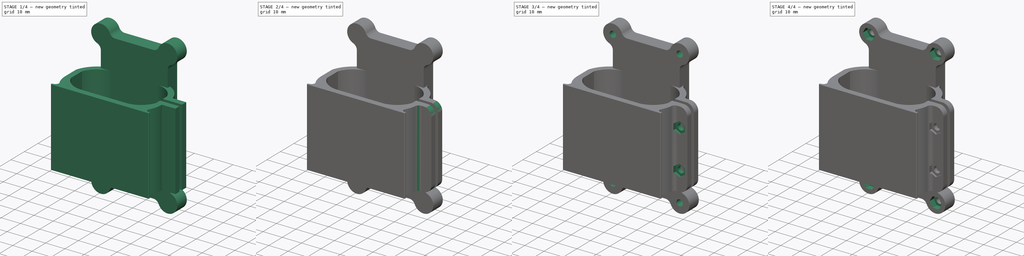
[diagram: build sequence overview — one tinted view per stage of 4, left to right]
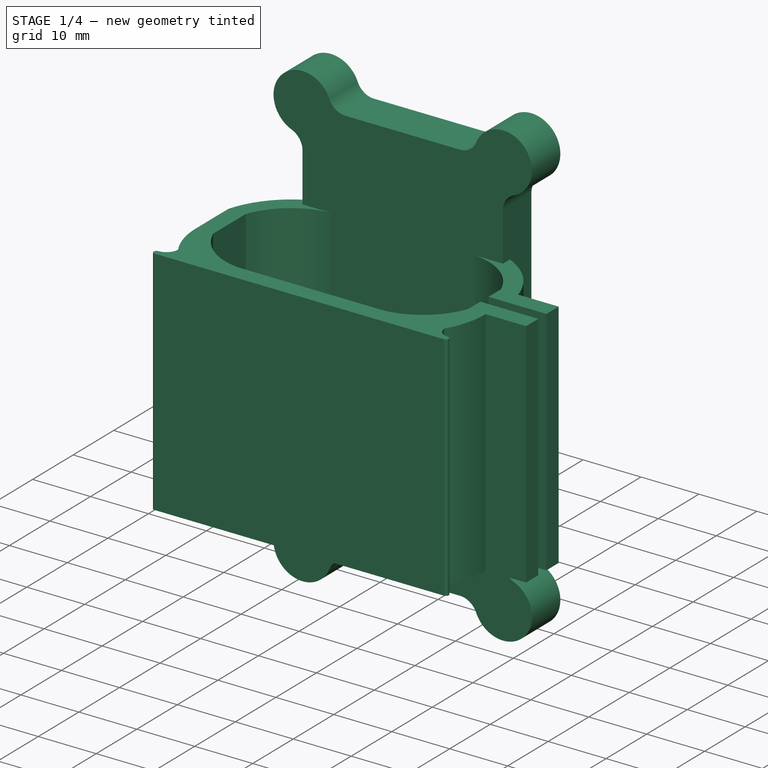
[diagram: stage 1 of 4 — iso view after this stage's code; geometry added in this stage tinted green]
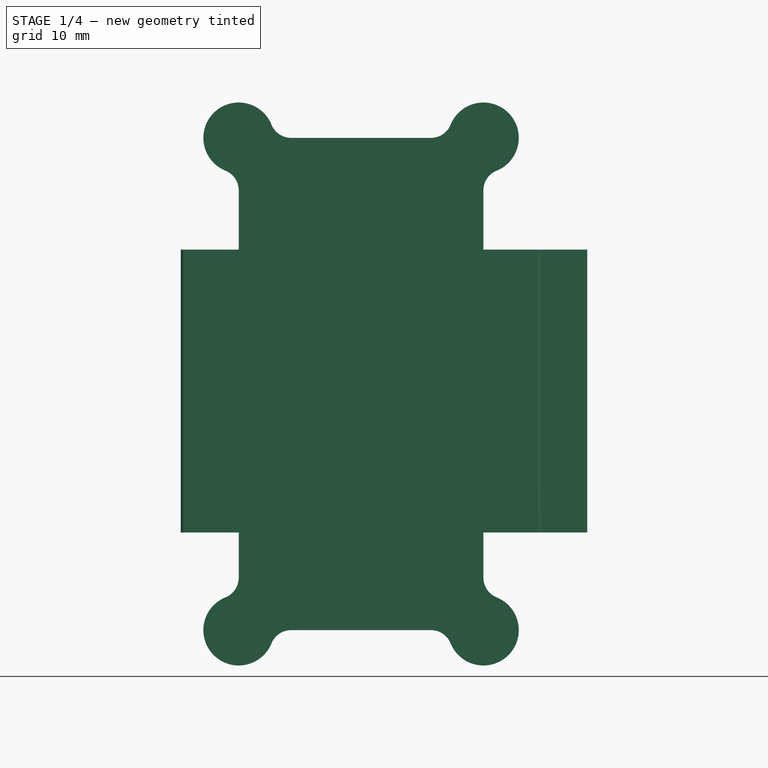
[diagram: stage 1 of 4 — front view after this stage's code; geometry added in this stage tinted green]
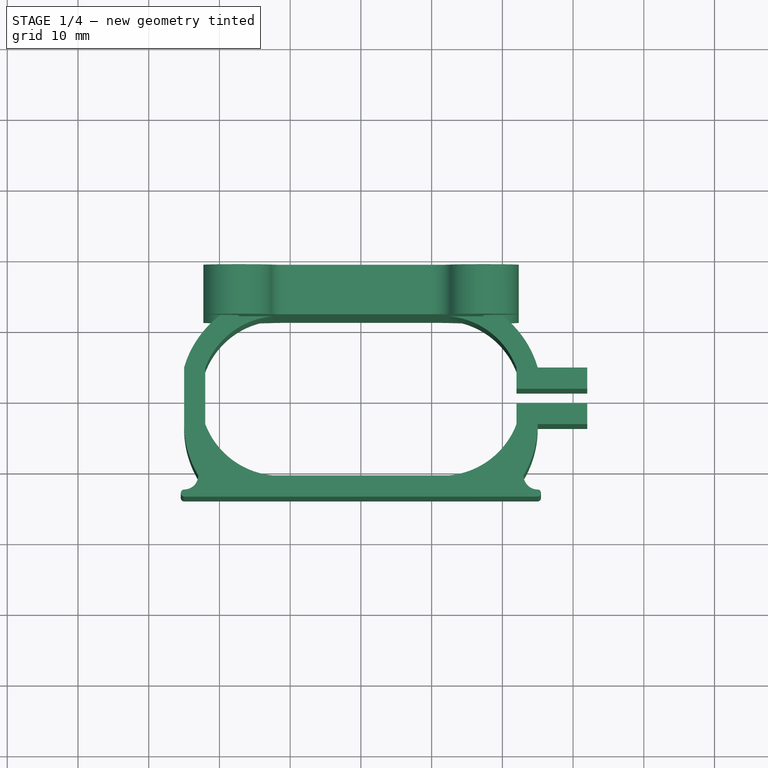
[diagram: stage 1 of 4 — top view after this stage's code; geometry added in this stage tinted green]
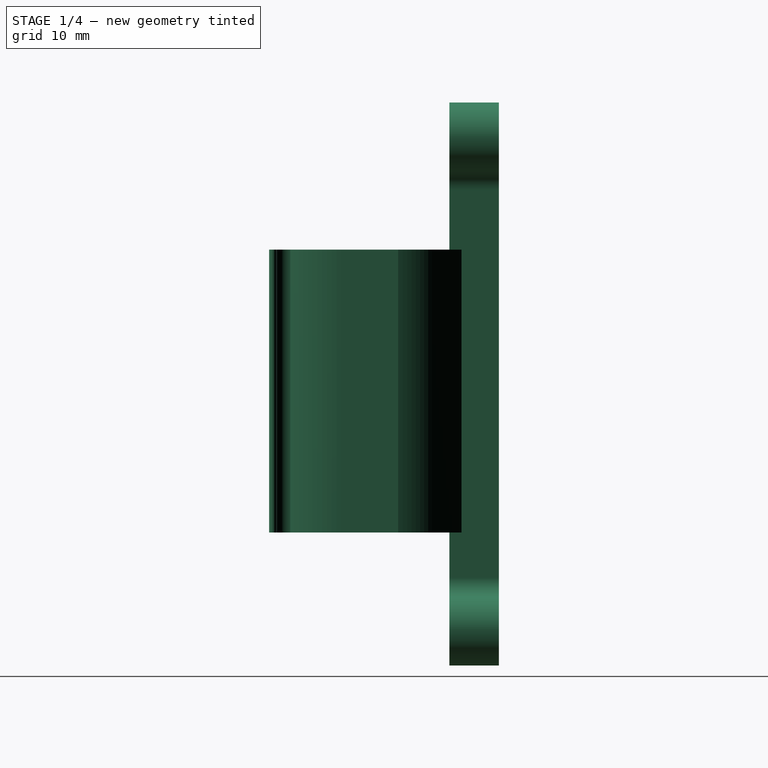
[diagram: stage 1 of 4 — right view after this stage's code; geometry added in this stage tinted green]
FCSTD DOCUMENT  (FreeCAD 0.18R14016 (Git))
Label: anker-astro-support
License: CreativeCommons Attribution-NonCommercial-ShareAlike
LicenseURL: http://creativecommons.org/licenses/by-nc-sa/4.0/
objects: Sketcher::SketchObject×7, PartDesign::Fillet×3, PartDesign::Pocket×3, PartDesign::Pad×2, PartDesign::Hole×2, PartDesign::Body×1
note: 25 computed .brp shape members not serialized (recipe doc carries the construction recipe); baked Part::Feature solids carry a one-line shape summary decoded from their .brp

FEATURE [Sketcher::SketchObject] Sketch001
  MapMode = 5
  Placement = pos=(0,0,-5) rot=(1,0,0;3.14159rad)
  sketch-geometry (53):
    g0: LineSegment [constr] StartX=22 StartY=-11.25 StartZ=0 EndX=-22 EndY=-11.25 EndZ=0
    g1: LineSegment [constr] StartX=-22 StartY=-11.25 StartZ=0 EndX=-22 EndY=11.25 EndZ=0
    g2: LineSegment [constr] StartX=-22 StartY=11.25 StartZ=0 EndX=22 EndY=11.25 EndZ=0
    g3: LineSegment [constr] StartX=22 StartY=11.25 StartZ=0 EndX=22 EndY=-11.25 EndZ=0
    g4: LineSegment [constr] StartX=28.0315 StartY=-4 StartZ=0 EndX=-32.5281 EndY=-4 EndZ=0
    g5: LineSegment [constr] StartX=-31.9917 StartY=4 StartZ=0 EndX=33.9247 EndY=4 EndZ=0
    g6: LineSegment [constr] StartX=12.5 StartY=-17.9811 StartZ=0 EndX=12.5 EndY=19.0141 EndZ=0
    g7: LineSegment [constr] StartX=-12.5 StartY=-17.584 StartZ=0 EndX=-12.5 EndY=18.8949 EndZ=0
    g8: LineSegment [constr] StartX=-25 StartY=14.25 StartZ=0 EndX=25 EndY=14.25 EndZ=0
    g9: LineSegment [constr] StartX=25 StartY=14.25 StartZ=0 EndX=25 EndY=-14.25 EndZ=0
    g10: LineSegment [constr] StartX=25 StartY=-14.25 StartZ=0 EndX=-25 EndY=-14.25 EndZ=0
    g11: LineSegment [constr] StartX=-25 StartY=-14.25 StartZ=0 EndX=-25 EndY=14.25 EndZ=0
    g12: ArcOfCircle CenterX=11.4309 CenterY=0 CenterZ=0 NormalX=0 NormalY=0 NormalZ=1 AngleXU=0 Radius=11.3007 StartAngle=4.80713 EndAngle=5.92138
    g13: ArcOfCircle CenterX=11.4309 CenterY=0 CenterZ=0 NormalX=0 NormalY=0 NormalZ=1 AngleXU=0 Radius=11.3007 StartAngle=0.361803 EndAngle=1.47605
    g14: ArcOfCircle CenterX=-11.4309 CenterY=0 CenterZ=0 NormalX=0 NormalY=0 NormalZ=1 AngleXU=0 Radius=11.3007 StartAngle=1.66554 EndAngle=2.77979
    g15: ArcOfCircle CenterX=-11.4309 CenterY=0 CenterZ=0 NormalX=0 NormalY=0 NormalZ=1 AngleXU=0 Radius=11.3007 StartAngle=3.5034 EndAngle=4.61764
    g16: ArcOfCircle CenterX=11.2675 CenterY=0 CenterZ=0 NormalX=0 NormalY=0 NormalZ=1 AngleXU=0 Radius=14.3032 StartAngle=4.79867 EndAngle=5.99975
    g17: ArcOfCircle CenterX=-11.2675 CenterY=0 CenterZ=0 NormalX=0 NormalY=0 NormalZ=1 AngleXU=0 Radius=14.3032 StartAngle=3.42503 EndAngle=4.62611
    g18: LineSegment StartX=-12.5 StartY=11.25 StartZ=0 EndX=12.5 EndY=11.25 EndZ=0
    g19: LineSegment StartX=12.5 StartY=14.25 StartZ=0 EndX=-12.5 EndY=14.25 EndZ=0
    g20: LineSegment StartX=-12.5 StartY=-14.25 StartZ=0 EndX=12.5 EndY=-14.25 EndZ=0
    g21: LineSegment StartX=-12.5 StartY=-11.25 StartZ=0 EndX=12.5 EndY=-11.25 EndZ=0
    g22: LineSegment StartX=-25 StartY=-4 StartZ=0 EndX=-25 EndY=4 EndZ=0
    g23: LineSegment StartX=-22 StartY=-4 StartZ=0 EndX=-22 EndY=4 EndZ=0
    g24: LineSegment [constr] StartX=22 StartY=-1 StartZ=0 EndX=32 EndY=-1 EndZ=0
    g25: LineSegment [constr] StartX=32 StartY=-1 StartZ=0 EndX=32 EndY=1 EndZ=0
    g26: LineSegment [constr] StartX=32 StartY=1 StartZ=0 EndX=22 EndY=1 EndZ=0
    g27: LineSegment [constr] StartX=22 StartY=1 StartZ=0 EndX=22 EndY=-1 EndZ=0
    g28: LineSegment [constr] StartX=32 StartY=-4 StartZ=0 EndX=25 EndY=-4 EndZ=0
    g29: LineSegment [constr] StartX=25 StartY=-4 StartZ=0 EndX=25 EndY=4 EndZ=0
    g30: LineSegment [constr] StartX=25 StartY=4 StartZ=0 EndX=32 EndY=4 EndZ=0
    g31: LineSegment [constr] StartX=32 StartY=4 StartZ=0 EndX=32 EndY=-4 EndZ=0
    g32: LineSegment [constr] StartX=28.5 StartY=-9.16571 StartZ=0 EndX=28.5 EndY=11.2033 EndZ=0
    g33: LineSegment StartX=32 StartY=1 StartZ=0 EndX=22 EndY=1 EndZ=0
    g34: LineSegment StartX=32 StartY=4 StartZ=0 EndX=32 EndY=1 EndZ=0
    g35: LineSegment StartX=32 StartY=4 StartZ=0 EndX=25 EndY=4 EndZ=0
    g36: LineSegment StartX=22 StartY=1 StartZ=0 EndX=22 EndY=4 EndZ=0
    g37: LineSegment StartX=32 StartY=-1 StartZ=0 EndX=22 EndY=-1 EndZ=0
    g38: LineSegment StartX=32 StartY=-4 StartZ=0 EndX=32 EndY=-1 EndZ=0
    g39: LineSegment StartX=22 StartY=-1 StartZ=0 EndX=22 EndY=-4 EndZ=0
    g40: LineSegment StartX=32 StartY=-4 StartZ=0 EndX=25 EndY=-4 EndZ=0
    g41: LineSegment [constr] StartX=22 StartY=11.25 StartZ=0 EndX=34.0491 EndY=11.25 EndZ=0
    g42: LineSegment [constr] StartX=-22 StartY=11.25 StartZ=0 EndX=-40.3749 EndY=11.25 EndZ=0
    g43: Circle [constr] CenterX=25 CenterY=11.25 CenterZ=0 NormalX=0 NormalY=0 NormalZ=1 AngleXU=0 Radius=2
    g44: ArcOfCircle CenterX=10.8594 CenterY=4 CenterZ=0 NormalX=0 NormalY=0 NormalZ=1 AngleXU=0 Radius=14.1406 StartAngle=0 EndAngle=0.538335
    g45: ArcOfCircle CenterX=25 CenterY=11.25 CenterZ=0 NormalX=0 NormalY=0 NormalZ=1 AngleXU=0 Radius=2 StartAngle=1.57369 EndAngle=3.14159
    g46: LineSegment StartX=12.5 StartY=14.25 StartZ=0 EndX=25 EndY=14.25 EndZ=0
    g47: Circle [constr] CenterX=25 CenterY=13.75 CenterZ=0 NormalX=0 NormalY=0 NormalZ=1 AngleXU=0 Radius=0.500021
    g48: ArcOfCircle CenterX=24.968 CenterY=13.7502 CenterZ=0 NormalX=0 NormalY=0 NormalZ=1 AngleXU=0 Radius=0.500858 StartAngle=4.76471 EndAngle=7.79008
    g49: ArcOfCircle CenterX=-10.8594 CenterY=4 CenterZ=0 NormalX=0 NormalY=0 NormalZ=1 AngleXU=0 Radius=14.1406 StartAngle=2.60326 EndAngle=3.14159
    g50: ArcOfCircle CenterX=-25 CenterY=11.25 CenterZ=0 NormalX=0 NormalY=0 NormalZ=1 AngleXU=0 Radius=2 StartAngle=0 EndAngle=1.5679
    g51: ArcOfCircle CenterX=-24.968 CenterY=13.7502 CenterZ=0 NormalX=0 NormalY=0 NormalZ=1 AngleXU=0 Radius=0.500858 StartAngle=1.6347 EndAngle=4.66007
    g52: LineSegment StartX=-12.5 StartY=14.25 StartZ=0 EndX=-25 EndY=14.25 EndZ=0
  constraints (146):
    c: Coincident(g0,g1)
    c: Coincident(g1,g2)
    c: Coincident(g2,g3)
    c: Coincident(g3,g0)
    c: Horizontal(g0)
    c: Horizontal(g2)
    c: Vertical(g1)
    c: Vertical(g3)
    c: DistanceY(g3,g3) = 22.5
    c: DistanceY(g0,g-1) = 11.25
    c: DistanceX(g0,g0) = 44
    c: DistanceX(g-1,g0) = 22
    c: Horizontal(g4)
    c: Horizontal(g5)
    c: DistanceY(g-1,g5) = 4
    c: DistanceY(g4,g-1) = 4
    c: Vertical(g6)
    c: Vertical(g7)
    c: DistanceX(g7,g-1) = 12.5
    c: DistanceX(g-1,g6) = 12.5
    c: Coincident(g9,g10)
    c: Coincident(g10,g11)
    c: Coincident(g11,g8)
    c: Horizontal(g10)
    c: Vertical(g9)
    c: Vertical(g11)
    c: Coincident(g8,g9)
    c: PointOnObject(g12,g-1)
    c: PointOnObject(g12,g3)
    c: PointOnObject(g12,g0)
    c: PointOnObject(g12,g4)
    c: PointOnObject(g12,g6)
    c: PointOnObject(g13,g-1)
    c: PointOnObject(g13,g2)
    c: PointOnObject(g13,g3)
    c: PointOnObject(g13,g5)
    c: PointOnObject(g13,g6)
    c: PointOnObject(g14,g-1)
    c: PointOnObject(g14,g2)
    c: PointOnObject(g14,g1)
    c: PointOnObject(g14,g5)
    c: PointOnObject(g14,g7)
    c: PointOnObject(g15,g-1)
    c: PointOnObject(g15,g7)
    c: PointOnObject(g15,g4)
    c: PointOnObject(g15,g0)
    c: PointOnObject(g15,g1)
    c: PointOnObject(g35,g9)
    c: PointOnObject(g19,g8)
    c: DistanceY(g1,g8) = 3
    c: DistanceX(g8,g1) = 3
    c: DistanceY(g10,g0) = 3
    c: DistanceX(g0,g9) = 3
    c: PointOnObject(g35,g5)
    c: PointOnObject(g19,g6)
    c: PointOnObject(g16,g-1)
    c: PointOnObject(g16,g9)
    c: PointOnObject(g16,g10)
    c: PointOnObject(g16,g6)
    c: PointOnObject(g16,g4)
    c: PointOnObject(g17,g-1)
    c: PointOnObject(g17,g11)
    c: PointOnObject(g17,g10)
    c: PointOnObject(g19,g8)
    c: PointOnObject(g22,g11)
    c: PointOnObject(g19,g7)
    c: PointOnObject(g22,g5)
    c: PointOnObject(g17,g4)
    c: PointOnObject(g17,g7)
    c: Coincident(g18,g14)
    c: Coincident(g18,g13)
    c: Coincident(g20,g17)
    c: Coincident(g20,g16)
    c: Coincident(g21,g15)
    c: Coincident(g21,g12)
    c: Coincident(g22,g17)
    c: Coincident(g23,g15)
    c: Coincident(g23,g14)
    c: Coincident(g24,g25)
    c: Coincident(g25,g26)
    c: Coincident(g26,g27)
    c: Coincident(g27,g24)
    c: Horizontal(g24)
    c: Horizontal(g26)
    c: Vertical(g25)
    c: Vertical(g27)
    c: DistanceY(g27,g27) = 2
    c: DistanceY(g24,g-1) = 1
    c: PointOnObject(g24,g3)
    c: Coincident(g28,g29)
    c: Coincident(g29,g30)
    c: Coincident(g30,g31)
    c: Coincident(g31,g28)
    c: Horizontal(g28)
    c: Horizontal(g30)
    c: Vertical(g29)
    c: Vertical(g31)
    c: PointOnObject(g28,g9)
    c: DistanceX(g28,g28) = 7
    c: Vertical(g32)
    c: DistanceX(g16,g32) = 3.5
    c: PointOnObject(g28,g4)
    c: PointOnObject(g29,g5)
    c: PointOnObject(g25,g31)
    c: Coincident(g34,g33)
    c: Horizontal(g33)
    c: Vertical(g34)
    c: Coincident(g33,g25)
    c: Coincident(g35,g34)
    c: Horizontal(g35)
    c: Coincident(g36,g33)
    c: Coincident(g36,g13)
    c: Vertical(g36)
    c: Coincident(g38,g37)
    c: Horizontal(g37)
    c: Vertical(g38)
    c: Coincident(g37,g24)
    c: Coincident(g39,g37)
    c: Coincident(g39,g12)
    c: Vertical(g39)
    c: Coincident(g40,g38)
    c: Coincident(g40,g16)
    c: Horizontal(g40)
    c: Coincident(g41,g2)
    c: Horizontal(g41)
    c: Coincident(g42,g1)
    c: Horizontal(g42)
    c: PointOnObject(g43,g41)
    c: PointOnObject(g43,g9)
    c: PointOnObject(g44,g5)
    c: Radius(g43) = 2
    c: PointOnObject(g44,g43)
    c: PointOnObject(g44,g41)
    c: Coincident(g45,g43)
    c: Coincident(g45,g44)
    c: Coincident(g46,g8)
    c: Horizontal(g46)
    c: PointOnObject(g47,g9)
    c: PointOnObject(g45,g47)
    c: PointOnObject(g46,g47)
    c: Coincident(g48,g45)
    c: Coincident(g48,g46)
    c: Coincident(g50,g49)
    c: Horizontal(g52)
    c: Coincident(g51,g50)
    c: Coincident(g51,g52)
FEATURE [PartDesign::Pad] Pad
  Length = 40
  Length2 = 100
  Placement = pos=(0,0,-5) rot=(1,0,0;3.14159rad)
  Profile = -> Sketch001
  Type = 0
FEATURE [Sketcher::SketchObject] Sketch002
  Placement = pos=(0.0231815,14.25,-24) rot=(0.57735,0.57735,0.57735;4.18879rad)
  Support = -> [Pad]
  expr: Constraints[38] = Sketch.Constraints[42]
  expr: Constraints[16] = Sketch.Constraints[20]
  expr: Constraints[17] = Sketch.Constraints[21]
  expr: Constraints[25] = Sketch.Constraints[29]
  expr: Constraints[27] = Sketch.Constraints[31]
  expr: Constraints[26] = Sketch.Constraints[30]
  expr: Constraints[6] = Sketch.Constraints[8]
  expr: Constraints[7] = Sketch.Constraints[9]
  expr: Constraints[36] = Sketch.Constraints[40]
  expr: Constraints[24] = Sketch.Constraints[28]
  expr: Constraints[47] = Sketch.Constraints[51]
  expr: Constraints[39] = Sketch.Constraints[43]
  expr: Constraints[37] = Sketch.Constraints[41]
  expr: Constraints[43] = Sketch.Constraints[47]
  expr: Constraints[45] = Sketch.Constraints[49]
  expr: Constraints[41] = Sketch.Constraints[45]
  sketch-geometry (64):
    g0: LineSegment [constr] StartX=-32.5 StartY=15 StartZ=0 EndX=32.5 EndY=15 EndZ=0
    g1: LineSegment [constr] StartX=32.5 StartY=15 StartZ=0 EndX=32.5 EndY=-15 EndZ=0
    g2: LineSegment [constr] StartX=32.5 StartY=-15 StartZ=0 EndX=-32.5 EndY=-15 EndZ=0
    g3: LineSegment [constr] StartX=-32.5 StartY=-15 StartZ=0 EndX=-32.5 EndY=15 EndZ=0
    g4: LineSegment [constr] StartX=-29 StartY=11.5 StartZ=0 EndX=29 EndY=11.5 EndZ=0
    g5: LineSegment [constr] StartX=29 StartY=11.5 StartZ=0 EndX=29 EndY=-11.5 EndZ=0
    g6: LineSegment [constr] StartX=29 StartY=-11.5 StartZ=0 EndX=-29 EndY=-11.5 EndZ=0
    g7: LineSegment [constr] StartX=-29 StartY=-11.5 StartZ=0 EndX=-29 EndY=11.5 EndZ=0
    g8: Circle [constr] CenterX=-29 CenterY=11.5 CenterZ=0 NormalX=0 NormalY=0 NormalZ=1 AngleXU=0 Radius=1.375
    g9: Circle [constr] CenterX=29 CenterY=11.5 CenterZ=0 NormalX=0 NormalY=0 NormalZ=1 AngleXU=0 Radius=1.375
    g10: Circle [constr] CenterX=29 CenterY=-11.5 CenterZ=0 NormalX=0 NormalY=0 NormalZ=1 AngleXU=0 Radius=1.375
    g11: Circle [constr] CenterX=-29 CenterY=-11.5 CenterZ=0 NormalX=0 NormalY=0 NormalZ=1 AngleXU=0 Radius=1.375
    g12: LineSegment [constr] StartX=-29.5 StartY=12 StartZ=0 EndX=29.5 EndY=12 EndZ=0
    g13: LineSegment [constr] StartX=29.5 StartY=12 StartZ=0 EndX=29.5 EndY=-12 EndZ=0
    g14: LineSegment [constr] StartX=29.5 StartY=-12 StartZ=0 EndX=-29.5 EndY=-12 EndZ=0
    g15: LineSegment [constr] StartX=-29.5 StartY=-12 StartZ=0 EndX=-29.5 EndY=12 EndZ=0
    g16: ArcOfCircle [constr] CenterX=-29.5 CenterY=12 CenterZ=0 NormalX=0 NormalY=0 NormalZ=1 AngleXU=0 Radius=3 StartAngle=1.5708 EndAngle=3.14159
    g17: ArcOfCircle [constr] CenterX=29.5 CenterY=12 CenterZ=0 NormalX=0 NormalY=0 NormalZ=1 AngleXU=0 Radius=3 StartAngle=2.8425e-08 EndAngle=1.5708
    g18: ArcOfCircle [constr] CenterX=29.5 CenterY=-12 CenterZ=0 NormalX=0 NormalY=0 NormalZ=1 AngleXU=0 Radius=3 StartAngle=4.71239 EndAngle=6.28319
    g19: ArcOfCircle [constr] CenterX=-29.5 CenterY=-12 CenterZ=0 NormalX=0 NormalY=0 NormalZ=1 AngleXU=0 Radius=3 StartAngle=3.14159 EndAngle=4.71239
    g20: LineSegment [constr] StartX=-29.5 StartY=15 StartZ=0 EndX=29.5 EndY=15 EndZ=0
    g21: LineSegment [constr] StartX=32.5 StartY=12 StartZ=0 EndX=32.5 EndY=-12 EndZ=0
    g22: LineSegment [constr] StartX=29.5 StartY=-15 StartZ=0 EndX=-29.5 EndY=-15 EndZ=0
    g23: LineSegment [constr] StartX=-32.5 StartY=-12 StartZ=0 EndX=-32.5 EndY=12 EndZ=0
    g24: ArcOfCircle [constr] CenterX=-29.5 CenterY=12 CenterZ=0 NormalX=0 NormalY=0 NormalZ=1 AngleXU=0 Radius=3.3 StartAngle=1.5708 EndAngle=3.14159
    g25: ArcOfCircle [constr] CenterX=29.5 CenterY=12 CenterZ=0 NormalX=0 NormalY=0 NormalZ=1 AngleXU=0 Radius=3.3 StartAngle=-2.2e-10 EndAngle=1.5708
    g26: ArcOfCircle [constr] CenterX=29.5 CenterY=-12 CenterZ=0 NormalX=0 NormalY=0 NormalZ=1 AngleXU=0 Radius=3.3 StartAngle=4.71239 EndAngle=6.28319
    g27: ArcOfCircle [constr] CenterX=-29.5 CenterY=-12 CenterZ=0 NormalX=0 NormalY=0 NormalZ=1 AngleXU=0 Radius=3.3 StartAngle=3.14159 EndAngle=4.71239
    g28: LineSegment [constr] StartX=-32.8 StartY=12 StartZ=0 EndX=-32.8 EndY=-12 EndZ=0
    g29: LineSegment [constr] StartX=-29.5 StartY=15.3 StartZ=0 EndX=29.5 EndY=15.3 EndZ=0
    g30: LineSegment [constr] StartX=32.8 StartY=12 StartZ=0 EndX=32.8 EndY=-12 EndZ=0
    g31: LineSegment [constr] StartX=29.5 StartY=-15.3 StartZ=0 EndX=-29.5 EndY=-15.3 EndZ=0
    g32: LineSegment [constr] StartX=-34.8 StartY=17.3 StartZ=0 EndX=34.8 EndY=17.3 EndZ=0
    g33: LineSegment [constr] StartX=34.8 StartY=17.3 StartZ=0 EndX=34.8 EndY=-17.3 EndZ=0
    g34: LineSegment [constr] StartX=34.8 StartY=-17.3 StartZ=0 EndX=-34.8 EndY=-17.3 EndZ=0
    g35: LineSegment [constr] StartX=-34.8 StartY=-17.3 StartZ=0 EndX=-34.8 EndY=17.3 EndZ=0
    g36: Circle [constr] CenterX=34.8 CenterY=17.3 CenterZ=0 NormalX=0 NormalY=0 NormalZ=1 AngleXU=0 Radius=5
    g37: Circle [constr] CenterX=34.8 CenterY=-17.3 CenterZ=0 NormalX=0 NormalY=0 NormalZ=1 AngleXU=0 Radius=5
    g38: Circle [constr] CenterX=-34.8 CenterY=-17.3 CenterZ=0 NormalX=0 NormalY=0 NormalZ=1 AngleXU=0 Radius=5
    g39: Circle [constr] CenterX=-34.8 CenterY=17.3 CenterZ=0 NormalX=0 NormalY=0 NormalZ=1 AngleXU=0 Radius=5
    g40: Circle [constr] CenterX=27.3838 CenterY=20.3 CenterZ=0 NormalX=0 NormalY=0 NormalZ=1 AngleXU=0 Radius=3
    g41: Circle [constr] CenterX=-27.3838 CenterY=20.3 CenterZ=0 NormalX=0 NormalY=0 NormalZ=1 AngleXU=0 Radius=3
    g42: Circle [constr] CenterX=-37.8 CenterY=9.8838 CenterZ=0 NormalX=0 NormalY=0 NormalZ=1 AngleXU=0 Radius=3
    g43: Circle [constr] CenterX=-37.8 CenterY=-9.8838 CenterZ=0 NormalX=0 NormalY=0 NormalZ=1 AngleXU=0 Radius=3
    g44: Circle [constr] CenterX=-27.3838 CenterY=-20.3 CenterZ=0 NormalX=0 NormalY=0 NormalZ=1 AngleXU=0 Radius=3
    g45: Circle [constr] CenterX=27.3838 CenterY=-20.3 CenterZ=0 NormalX=0 NormalY=0 NormalZ=1 AngleXU=0 Radius=3
    g46: Circle [constr] CenterX=37.8 CenterY=-9.8838 CenterZ=0 NormalX=0 NormalY=0 NormalZ=1 AngleXU=0 Radius=3
    g47: Circle [constr] CenterX=37.8 CenterY=9.8838 CenterZ=0 NormalX=0 NormalY=0 NormalZ=1 AngleXU=0 Radius=3
    g48: ArcOfCircle CenterX=34.8 CenterY=17.3 CenterZ=0 NormalX=0 NormalY=0 NormalZ=1 AngleXU=0 Radius=5 StartAngle=5.09679 EndAngle=9.04038
    g49: ArcOfCircle CenterX=27.3838 CenterY=20.3 CenterZ=0 NormalX=0 NormalY=0 NormalZ=1 AngleXU=0 Radius=3 StartAngle=4.71239 EndAngle=5.89879
    g50: ArcOfCircle CenterX=37.8 CenterY=9.8838 CenterZ=0 NormalX=0 NormalY=0 NormalZ=1 AngleXU=0 Radius=3 StartAngle=1.95519 EndAngle=3.14159
    g51: ArcOfCircle CenterX=37.8 CenterY=-9.8838 CenterZ=0 NormalX=0 NormalY=0 NormalZ=1 AngleXU=0 Radius=3 StartAngle=3.14159 EndAngle=4.32799
    g52: ArcOfCircle CenterX=34.8 CenterY=-17.3 CenterZ=0 NormalX=0 NormalY=0 NormalZ=1 AngleXU=0 Radius=5 StartAngle=3.52599 EndAngle=7.46958
    g53: ArcOfCircle CenterX=27.3838 CenterY=-20.3 CenterZ=0 NormalX=0 NormalY=0 NormalZ=1 AngleXU=0 Radius=3 StartAngle=0.384397 EndAngle=1.5708
    g54: ArcOfCircle CenterX=-27.3838 CenterY=-20.3 CenterZ=0 NormalX=0 NormalY=0 NormalZ=1 AngleXU=0 Radius=3 StartAngle=1.5708 EndAngle=2.7572
    g55: ArcOfCircle CenterX=-34.8 CenterY=-17.3 CenterZ=0 NormalX=0 NormalY=0 NormalZ=1 AngleXU=0 Radius=5 StartAngle=1.95519 EndAngle=5.89879
    g56: ArcOfCircle CenterX=-37.8 CenterY=-9.8838 CenterZ=0 NormalX=0 NormalY=0 NormalZ=1 AngleXU=0 Radius=3 StartAngle=5.09679 EndAngle=6.28319
    g57: ArcOfCircle CenterX=-37.8 CenterY=9.8838 CenterZ=0 NormalX=0 NormalY=0 NormalZ=1 AngleXU=0 Radius=3 StartAngle=6.28319 EndAngle=7.46958
    g58: ArcOfCircle CenterX=-34.8 CenterY=17.3 CenterZ=0 NormalX=0 NormalY=0 NormalZ=1 AngleXU=0 Radius=5 StartAngle=0.384397 EndAngle=4.32799
    g59: ArcOfCircle CenterX=-27.3838 CenterY=20.3 CenterZ=0 NormalX=0 NormalY=0 NormalZ=1 AngleXU=0 Radius=3 StartAngle=3.52599 EndAngle=4.71239
    g60: LineSegment StartX=-27.3838 StartY=17.3 StartZ=0 EndX=27.3838 EndY=17.3 EndZ=0
    g61: LineSegment StartX=34.8 StartY=9.8838 StartZ=0 EndX=34.8 EndY=-9.8838 EndZ=0
    g62: LineSegment StartX=27.3838 StartY=-17.3 StartZ=0 EndX=-27.3838 EndY=-17.3 EndZ=0
    g63: LineSegment StartX=-34.8 StartY=-9.8838 StartZ=0 EndX=-34.8 EndY=9.8838 EndZ=0
  constraints (180):
    c: Coincident(g0,g1)
    c: Coincident(g1,g2)
    c: Coincident(g2,g3)
    c: Coincident(g3,g0)
    c: Horizontal(g2)
    c: Vertical(g3)
    c: DistanceX(g0,g0) = 65
    c: DistanceY(g1,g1) = 30
    c: Symmetric(g0,g0,g-2)
    c: Symmetric(g0,g1,g-1)
    c: Coincident(g4,g5)
    c: Coincident(g5,g6)
    c: Coincident(g6,g7)
    c: Coincident(g7,g4)
    c: Horizontal(g6)
    c: Vertical(g7)
    c: DistanceX(g4,g4) = 58
    c: DistanceY(g5,g5) = 23
    c: Symmetric(g4,g5,g-1)
    c: Symmetric(g4,g4,g-2)
    c: Coincident(g8,g4)
    c: Coincident(g9,g4)
    c: Coincident(g10,g5)
    c: Coincident(g11,g6)
    c: Radius(g11) = 1.375
    c: Radius(g8) = 1.375
    c: Radius(g9) = 1.375
    c: Radius(g10) = 1.375
    c: Coincident(g12,g13)
    c: Coincident(g13,g14)
    c: Coincident(g14,g15)
    c: Coincident(g15,g12)
    c: Horizontal(g12)
    c: Horizontal(g14)
    c: Vertical(g13)
    c: Vertical(g15)
    c: DistanceX(g4,g12) = 0.5
    c: DistanceY(g4,g12) = 0.5
    c: DistanceY(g13,g5) = 0.5
    c: DistanceX(g14,g6) = 0.5
    c: Coincident(g16,g12)
    c: Radius(g16) = 3
    c: Coincident(g17,g12)
    c: Radius(g17) = 3
    c: Coincident(g18,g13)
    c: Radius(g18) = 3
    c: Coincident(g19,g14)
    c: Radius(g19) = 3
    c: PointOnObject(g16,g0)
    c: PointOnObject(g17,g1)
    c: PointOnObject(g18,g2)
    c: PointOnObject(g19,g3)
    c: Coincident(g20,g16)
    c: Horizontal(g20)
    c: Coincident(g20,g17)
    c: Coincident(g21,g17)
    c: Vertical(g21)
    c: Coincident(g18,g21)
    c: Coincident(g22,g18)
    c: Horizontal(g22)
    c: Coincident(g19,g22)
    c: Coincident(g23,g19)
    c: Vertical(g23)
    c: Coincident(g23,g16)
    c: Coincident(g24,g12)
    c: Radius(g24) = 3.3
    c: Coincident(g25,g12)
    c: Radius(g25) = 3.3
    c: Coincident(g26,g13)
    c: Radius(g26) = 3.3
    c: Coincident(g27,g14)
    c: Radius(g27) = 3.3
    c: Vertical(g28)
    c: DistanceX(g28,g2) = 0.3
    c: Coincident(g27,g28)
    c: Coincident(g28,g24)
    c: Horizontal(g29)
    c: DistanceY(g0,g29) = 0.3
    c: Coincident(g24,g29)
    c: Coincident(g25,g29)
    c: Vertical(g30)
    c: DistanceX(g0,g30) = 0.3
    c: Coincident(g25,g30)
    c: Coincident(g30,g26)
    c: Horizontal(g31)
    c: DistanceY(g31,g1) = 0.3
    c: Coincident(g31,g26)
    c: Coincident(g31,g27)
    c: Coincident(g32,g33)
    c: Coincident(g33,g34)
    c: Coincident(g34,g35)
    c: Coincident(g35,g32)
    c: Horizontal(g32)
    c: Horizontal(g34)
    c: Vertical(g33)
    c: Vertical(g35)
    c: DistanceY(g25,g32) = 2
    c: DistanceX(g25,g32) = 2
    c: DistanceY(g33,g26) = 2
    c: DistanceX(g34,g27) = 2
    c: Coincident(g36,g32)
    c: Coincident(g37,g33)
    c: Coincident(g38,g34)
    c: Coincident(g39,g32)
    c: Radius(g39) = 5
    c: Radius(g38) = 5
    c: Radius(g37) = 5
    c: Radius(g36) = 5
    c: Radius(g40) = 3
    c: Tangent(g40,g36)
    c: Tangent(g40,g32)
    c: Tangent(g47,g36)
    c: Radius(g47) = 3
    c: Tangent(g47,g33)
    c: Radius(g46) = 3
    c: Tangent(g46,g37)
    c: Tangent(g46,g33)
    c: Radius(g45) = 3
    c: Tangent(g45,g37)
    c: Tangent(g45,g34)
    c: Radius(g44) = 3
    c: Tangent(g44,g34)
    c: Tangent(g44,g38)
    c: Radius(g43) = 3
    c: Tangent(g43,g38)
    c: Tangent(g43,g35)
    c: Radius(g42) = 3
    c: Tangent(g42,g35)
    c: Tangent(g42,g39)
    c: Radius(g41) = 3
    c: Tangent(g41,g32)
    c: Tangent(g41,g39)
    c: Coincident(g48,g32)
    c: PointOnObject(g48,g36)
    c: Coincident(g49,g40)
    c: PointOnObject(g49,g40)
    c: Coincident(g50,g47)
    c: PointOnObject(g50,g47)
    c: Coincident(g51,g46)
    c: PointOnObject(g51,g46)
    c: Coincident(g52,g33)
    c: PointOnObject(g52,g37)
    c: Coincident(g53,g45)
    c: PointOnObject(g53,g45)
    c: Coincident(g54,g44)
    c: PointOnObject(g54,g44)
    c: Coincident(g55,g34)
    c: PointOnObject(g55,g38)
    c: Coincident(g56,g43)
    c: PointOnObject(g56,g43)
    c: Coincident(g57,g42)
    c: PointOnObject(g57,g42)
    c: Coincident(g58,g32)
    c: PointOnObject(g58,g39)
    c: Coincident(g59,g41)
    c: PointOnObject(g59,g41)
    c: Coincident(g49,g48)
    c: Coincident(g48,g50)
    c: Coincident(g51,g52)
    c: Coincident(g52,g53)
    c: Coincident(g54,g55)
    c: Coincident(g55,g56)
    c: Coincident(g57,g58)
    c: Coincident(g58,g59)
    c: PointOnObject(g60,g32)
    c: Horizontal(g60)
    c: PointOnObject(g61,g33)
    c: Vertical(g61)
    c: PointOnObject(g62,g34)
    c: Horizontal(g62)
    c: PointOnObject(g63,g35)
    c: Vertical(g63)
    c: Coincident(g59,g60)
    c: Coincident(g60,g49)
    c: Coincident(g50,g61)
    c: Coincident(g61,g51)
    c: Coincident(g53,g62)
    c: Coincident(g54,g62)
    c: Coincident(g56,g63)
    c: Coincident(g57,g63)
FEATURE [PartDesign::Pad] Pad001
  BaseFeature = -> Pad
  Length = 4
  Length2 = 3
  Placement = pos=(0,0,-5) rot=(1,0,0;3.14159rad)
  Profile = -> Sketch002
  Type = 4
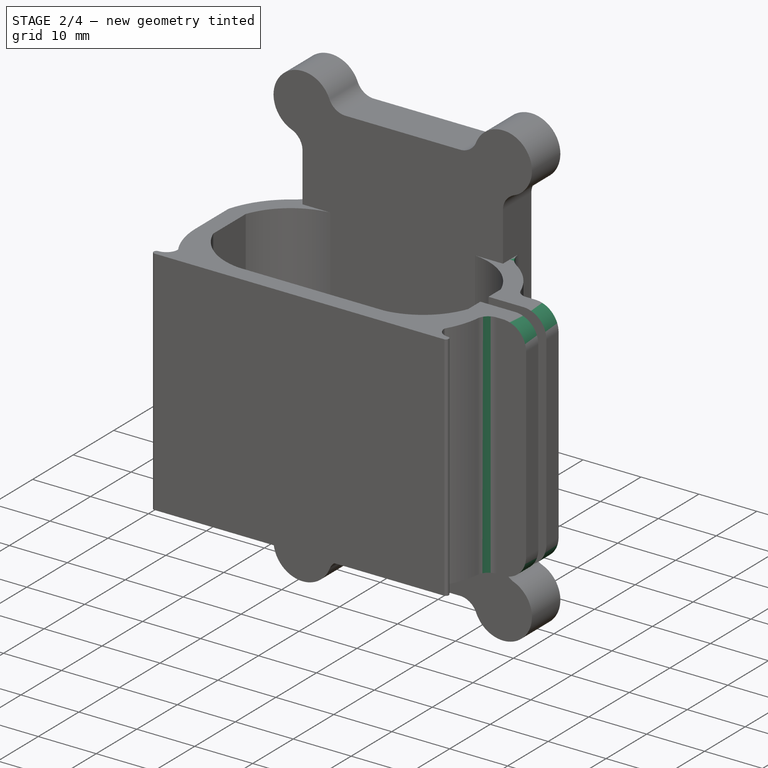
[diagram: stage 2 of 4 — iso view after this stage's code; geometry added in this stage tinted green]
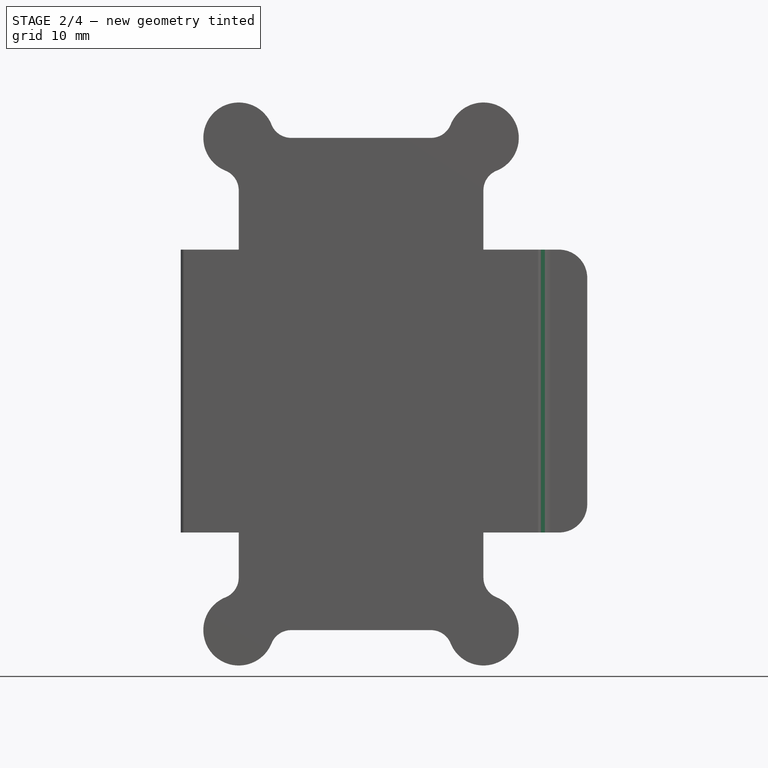
[diagram: stage 2 of 4 — front view after this stage's code; geometry added in this stage tinted green]
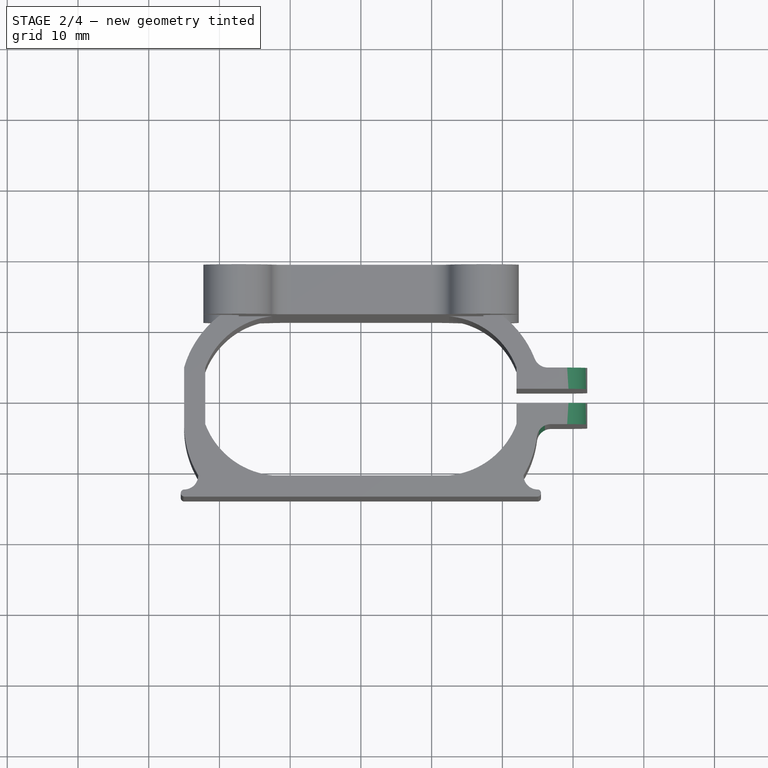
[diagram: stage 2 of 4 — top view after this stage's code; geometry added in this stage tinted green]
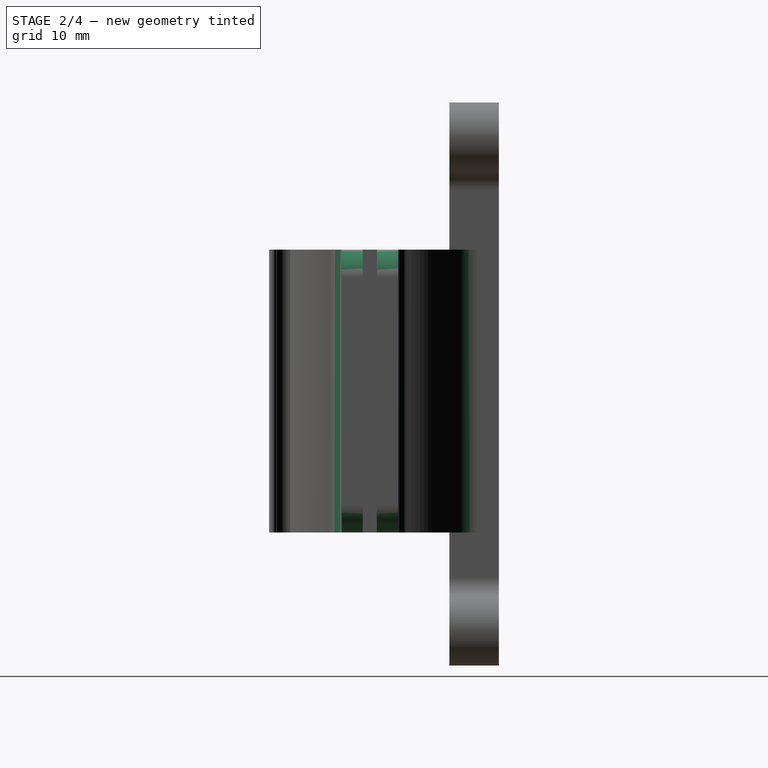
[diagram: stage 2 of 4 — right view after this stage's code; geometry added in this stage tinted green]
FEATURE [PartDesign::Fillet] Fillet
  Base = -> Pad001 [Edge138,Edge57]
  BaseFeature = -> Pad001
  Placement = pos=(0,0,-5) rot=(1,0,0;3.14159rad)
  Radius = 2
FEATURE [PartDesign::Fillet] Fillet001
  Base = -> Fillet [Edge30,Edge138,Edge100,Edge3]
  BaseFeature = -> Fillet
  Placement = pos=(0,0,-5) rot=(1,0,0;3.14159rad)
  Radius = 4
FEATURE [PartDesign::Fillet] Fillet002
  Base = -> Fillet001 [Edge112,Edge76]
  BaseFeature = -> Fillet001
  Placement = pos=(0,0,-5) rot=(1,0,0;3.14159rad)
  Radius = 4
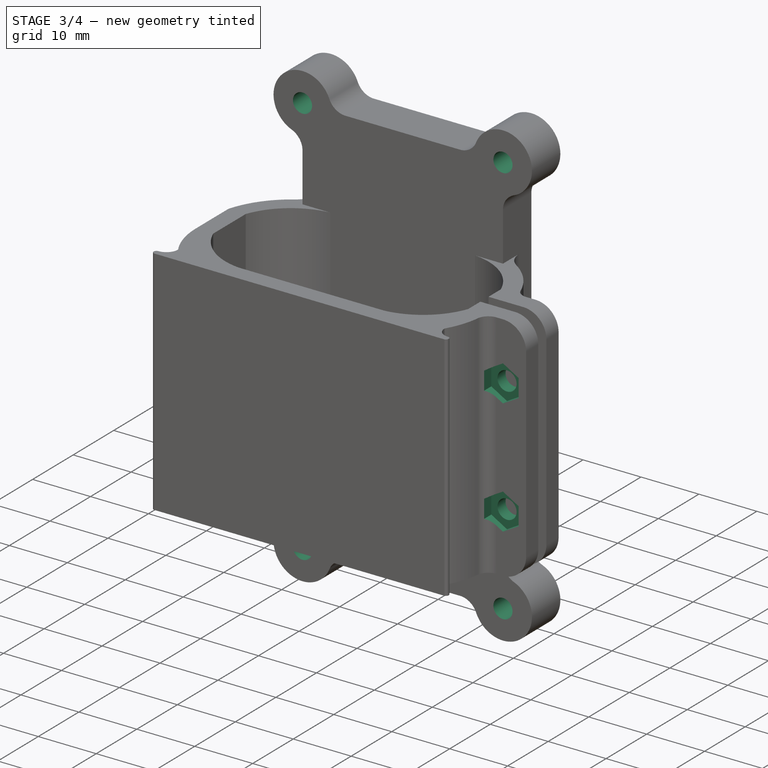
[diagram: stage 3 of 4 — iso view after this stage's code; geometry added in this stage tinted green]
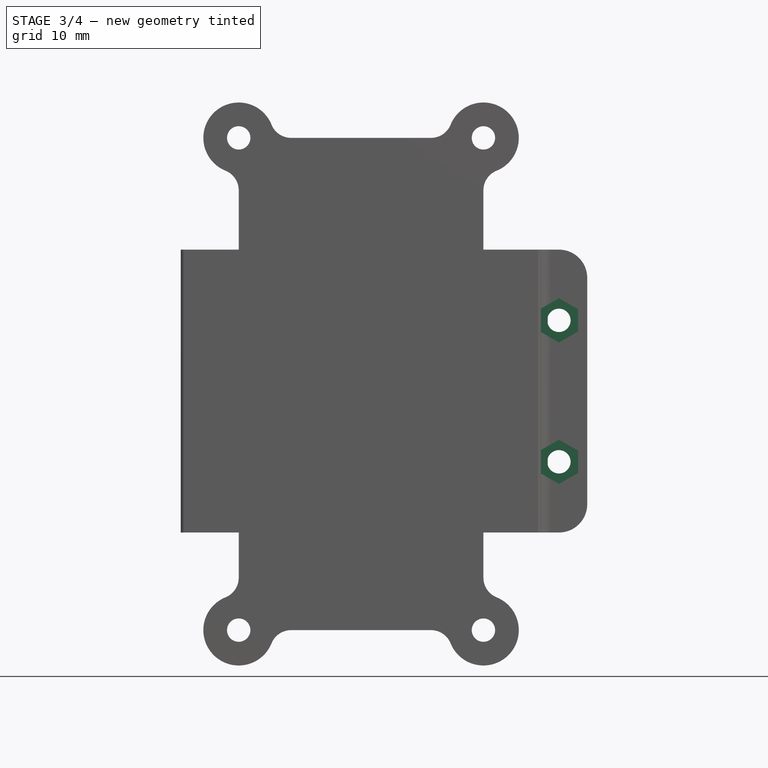
[diagram: stage 3 of 4 — front view after this stage's code; geometry added in this stage tinted green]
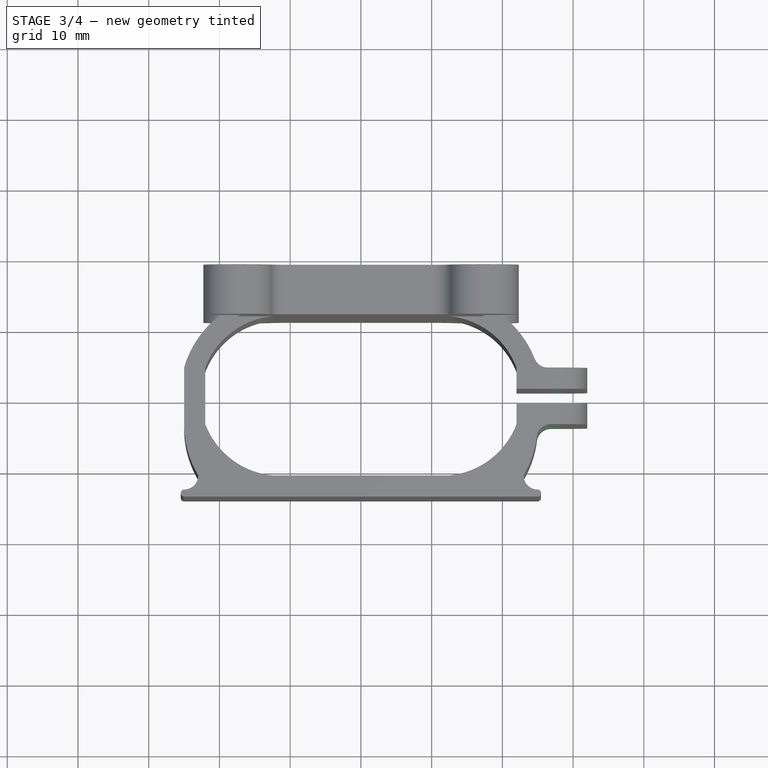
[diagram: stage 3 of 4 — top view after this stage's code; geometry added in this stage tinted green]
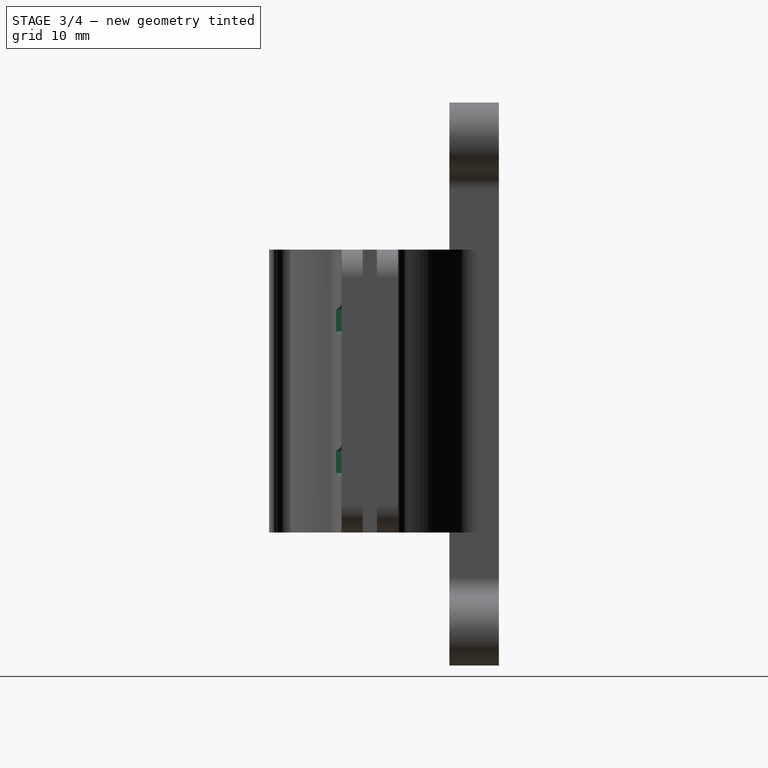
[diagram: stage 3 of 4 — right view after this stage's code; geometry added in this stage tinted green]
FEATURE [Sketcher::SketchObject] Sketch
  ExternalGeometry = -> [Pad001]
  MapMode = 5
  Placement = pos=(0,18.25,-5) rot=(-1,0,0;1.5708rad)
  Support = -> [Pad001]
  sketch-geometry (4):
    g0: Circle CenterX=17.3232 CenterY=-15.8 CenterZ=0 NormalX=0 NormalY=0 NormalZ=1 AngleXU=0 Radius=3.63831
    g1: Circle CenterX=-17.2768 CenterY=-15.8 CenterZ=0 NormalX=0 NormalY=0 NormalZ=1 AngleXU=0 Radius=3.48133
    g2: Circle CenterX=17.3232 CenterY=53.8 CenterZ=0 NormalX=0 NormalY=0 NormalZ=1 AngleXU=0 Radius=3.43353
    g3: Circle CenterX=-17.2768 CenterY=53.8 CenterZ=0 NormalX=0 NormalY=0 NormalZ=1 AngleXU=0 Radius=4.16605
  constraints (4):
    c: Coincident(g0,g-5)
    c: Coincident(g1,g-6)
    c: Coincident(g2,g-3)
    c: Coincident(g3,g-4)
FEATURE [PartDesign::Hole] Hole
  BaseFeature = -> Fillet002
  Depth = 25
  DepthType = 1
  Diameter = 3.3
  DrillPoint = 1
  DrillPointAngle = 118
  HoleCutCountersinkAngle = 90
  HoleCutDepth = 0
  HoleCutDiameter = 3
  HoleCutType = 0
  ModelActualThread = false
  Placement = pos=(0,0,-5) rot=(1,0,0;3.14159rad)
  Profile = -> Sketch
  Tapered = false
  TaperedAngle = 90
  ThreadAngle = 0
  ThreadClass = 0
  ThreadCutOffInner = 0
  ThreadCutOffOuter = 0
  ThreadDirection = 0
  ThreadFit = 0
  ThreadPitch = 0
  ThreadSize = 3
  ThreadType = 1
  Threaded = false
FEATURE [Sketcher::SketchObject] Sketch003
  ExternalGeometry = -> [Hole]
  MapMode = 5
  Placement = pos=(0,4,-5) rot=(-1,0,0;1.5708rad)
  Support = -> [Hole]
  sketch-geometry (5):
    g0: LineSegment [constr] StartX=28 StartY=43.8741 StartZ=0 EndX=28 EndY=-7.11469 EndZ=0
    g1: LineSegment [constr] StartX=38.3834 StartY=30 StartZ=0 EndX=18.1605 EndY=30 EndZ=0
    g2: LineSegment [constr] StartX=39.1734 StartY=10 StartZ=0 EndX=17.4232 EndY=10 EndZ=0
    g3: Circle CenterX=28 CenterY=30 CenterZ=0 NormalX=0 NormalY=0 NormalZ=1 AngleXU=0 Radius=4.12832
    g4: Circle CenterX=28 CenterY=10 CenterZ=0 NormalX=0 NormalY=0 NormalZ=1 AngleXU=0 Radius=4.45032
  constraints (10):
    c: Vertical(g0)
    c: PointOnObject(g-4,g0)
    c: Horizontal(g1)
    c: Horizontal(g2)
    c: DistanceY(g1,g-3) = 10
    c: DistanceY(g-4,g2) = 10
    c: PointOnObject(g3,g1)
    c: PointOnObject(g4,g2)
    c: PointOnObject(g4,g0)
    c: PointOnObject(g3,g0)
FEATURE [PartDesign::Hole] Hole001
  BaseFeature = -> Hole
  Depth = 25
  DepthType = 1
  Diameter = 3.3
  DrillPoint = 1
  DrillPointAngle = 118
  HoleCutCountersinkAngle = 90
  HoleCutDepth = 0
  HoleCutDiameter = 3
  HoleCutType = 0
  ModelActualThread = false
  Placement = pos=(0,0,-5) rot=(1,0,0;3.14159rad)
  Profile = -> Sketch003
  Tapered = false
  TaperedAngle = 90
  ThreadAngle = 0
  ThreadClass = 0
  ThreadCutOffInner = 0
  ThreadCutOffOuter = 0
  ThreadDirection = 0
  ThreadFit = 0
  ThreadPitch = 0
  ThreadSize = 3
  ThreadType = 1
  Threaded = false
FEATURE [Sketcher::SketchObject] Sketch004
  ExternalGeometry = -> [Hole001]
  MapMode = 5
  Placement = pos=(0,-4,-5) rot=(0,-0.707107,0.707107;3.14159rad)
  Support = -> [Hole001]
  sketch-geometry (17):
    g0: Circle [constr] CenterX=-28 CenterY=30 CenterZ=0 NormalX=0 NormalY=0 NormalZ=1 AngleXU=0 Radius=3
    g1: Circle [constr] CenterX=-28 CenterY=10 CenterZ=0 NormalX=0 NormalY=0 NormalZ=1 AngleXU=0 Radius=3
    g2: LineSegment StartX=-30.7107 StartY=31.565 StartZ=0 EndX=-30.7107 EndY=28.435 EndZ=0
    g3: LineSegment StartX=-30.7107 StartY=28.435 StartZ=0 EndX=-28 EndY=26.87 EndZ=0
    g4: LineSegment StartX=-28 StartY=26.87 StartZ=0 EndX=-25.2893 EndY=28.435 EndZ=0
    g5: LineSegment StartX=-25.2893 StartY=28.435 StartZ=0 EndX=-25.2893 EndY=31.565 EndZ=0
    g6: LineSegment StartX=-25.2893 StartY=31.565 StartZ=0 EndX=-28 EndY=33.13 EndZ=0
    g7: LineSegment StartX=-28 StartY=33.13 StartZ=0 EndX=-30.7107 EndY=31.565 EndZ=0
    g8: Circle [constr] CenterX=-28 CenterY=30 CenterZ=0 NormalX=0 NormalY=0 NormalZ=1 AngleXU=0 Radius=3.13
    g9: LineSegment [constr] StartX=-28 StartY=36.9353 StartZ=0 EndX=-28 EndY=1.49234 EndZ=0
    g10: LineSegment StartX=-28 StartY=13.13 StartZ=0 EndX=-30.7107 EndY=11.565 EndZ=0
    g11: LineSegment StartX=-30.7107 StartY=11.565 StartZ=0 EndX=-30.7107 EndY=8.435 EndZ=0
    g12: LineSegment StartX=-30.7107 StartY=8.435 StartZ=0 EndX=-28 EndY=6.87 EndZ=0
    g13: LineSegment StartX=-28 StartY=6.87 StartZ=0 EndX=-25.2893 EndY=8.435 EndZ=0
    g14: LineSegment StartX=-25.2893 StartY=8.435 StartZ=0 EndX=-25.2893 EndY=11.565 EndZ=0
    g15: LineSegment StartX=-25.2893 StartY=11.565 StartZ=0 EndX=-28 EndY=13.13 EndZ=0
    g16: Circle [constr] CenterX=-28 CenterY=10 CenterZ=0 NormalX=0 NormalY=0 NormalZ=1 AngleXU=0 Radius=3.13
  constraints (38):
    c: Coincident(g0,g-3)
    c: Coincident(g1,g-4)
    c: Tangent(g0,g-5)
    c: Tangent(g1,g-5)
    c: Coincident(g2,g3)
    c: Coincident(g3,g4)
    c: Coincident(g4,g5)
    c: Coincident(g5,g6)
    c: Coincident(g6,g7)
    c: Coincident(g7,g2)
    c: Equal(g2, g3-g7) x5
    c: PointOnObject(g2,g8)
    c: PointOnObject(g3,g8)
    c: PointOnObject(g4,g8)
    c: PointOnObject(g5,g8)
    c: PointOnObject(g6,g8)
    c: PointOnObject(g7,g8)
    c: Coincident(g8,g0)
    c: Radius(g8) = 3.13
    c: Vertical(g9)
    c: PointOnObject(g0,g9)
    c: PointOnObject(g6,g9)
    c: Coincident(g10,g11)
    c: Coincident(g11,g12)
    c: Coincident(g12,g13)
    c: Coincident(g13,g14)
    c: Coincident(g14,g15)
    c: Coincident(g15,g10)
    c: Equal(g10, g11-g15) x5
    c: PointOnObject(g10,g16)
    c: PointOnObject(g11,g16)
    c: PointOnObject(g12,g16)
    c: PointOnObject(g13,g16)
    c: PointOnObject(g14,g16)
    c: PointOnObject(g15,g16)
    c: Coincident(g16,g1)
    c: Radius(g16) = 3.13
    c: PointOnObject(g10,g9)
FEATURE [PartDesign::Pocket] Pocket
  BaseFeature = -> Hole001
  Length = 1
  Length2 = 2
  Placement = pos=(0,0,-5) rot=(1,0,0;3.14159rad)
  Profile = -> Sketch004
  Reversed = true
  Type = 4
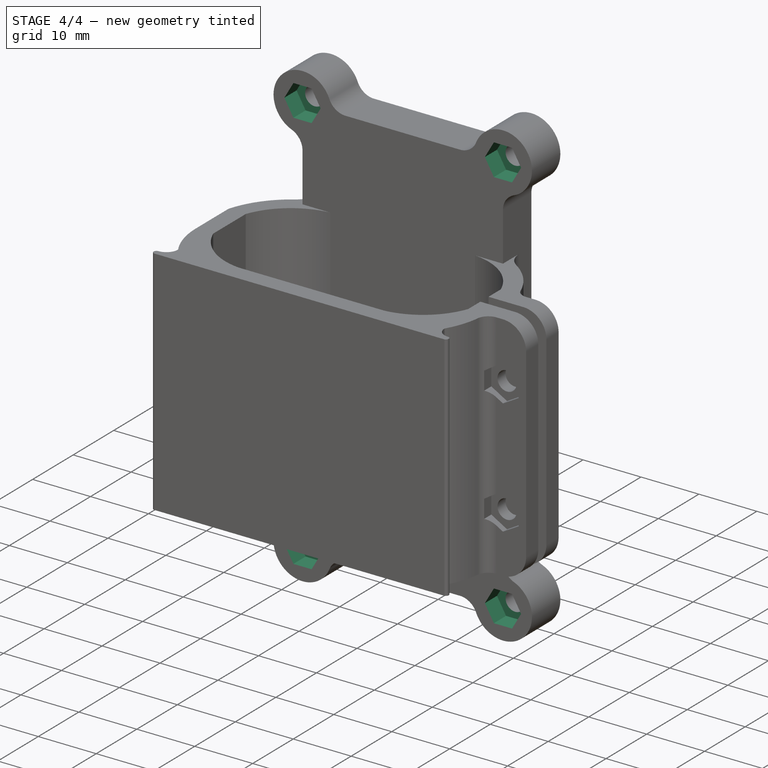
[diagram: stage 4 of 4 — iso view after this stage's code; geometry added in this stage tinted green]
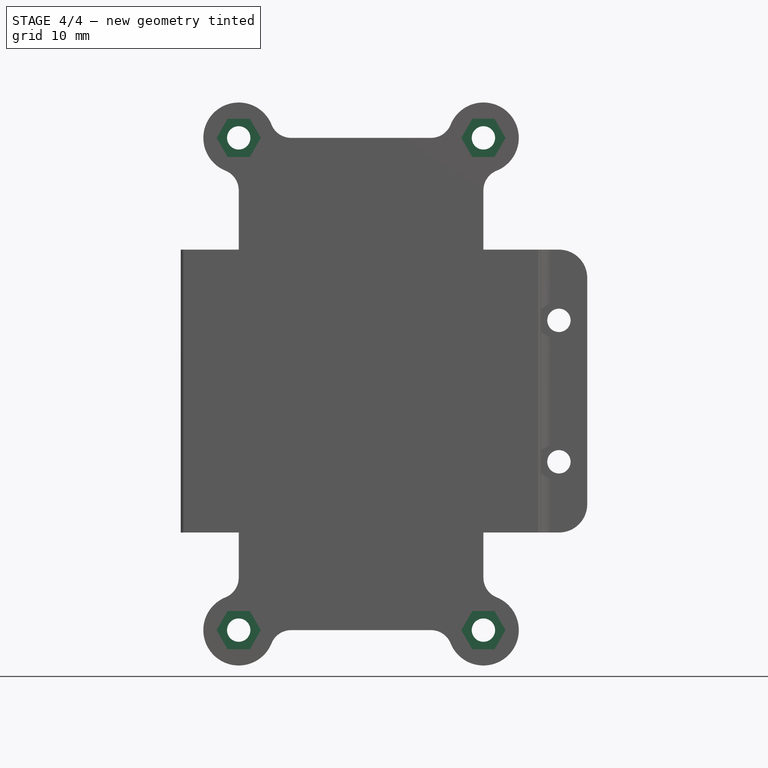
[diagram: stage 4 of 4 — front view after this stage's code; geometry added in this stage tinted green]
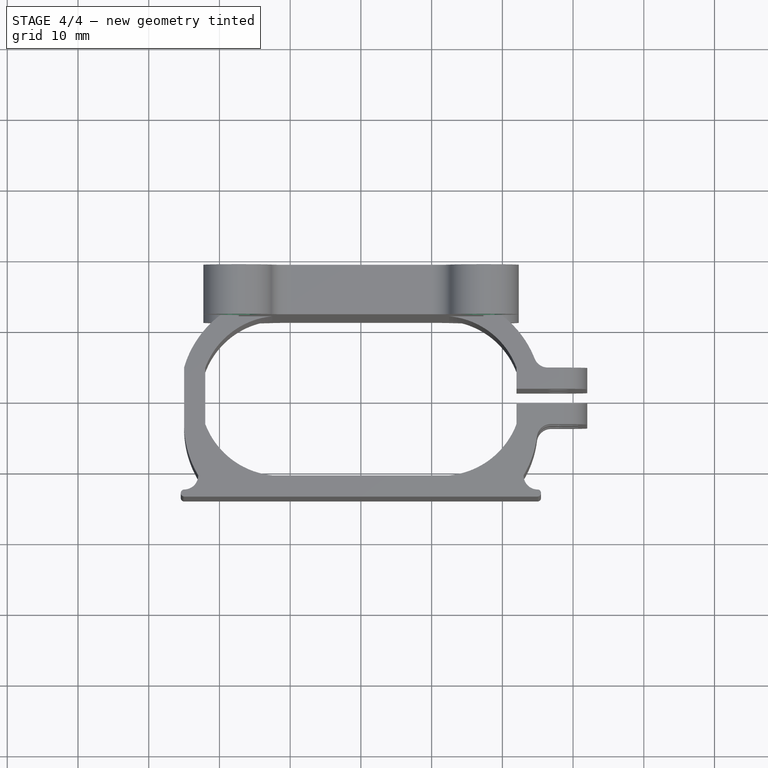
[diagram: stage 4 of 4 — top view after this stage's code; geometry added in this stage tinted green]
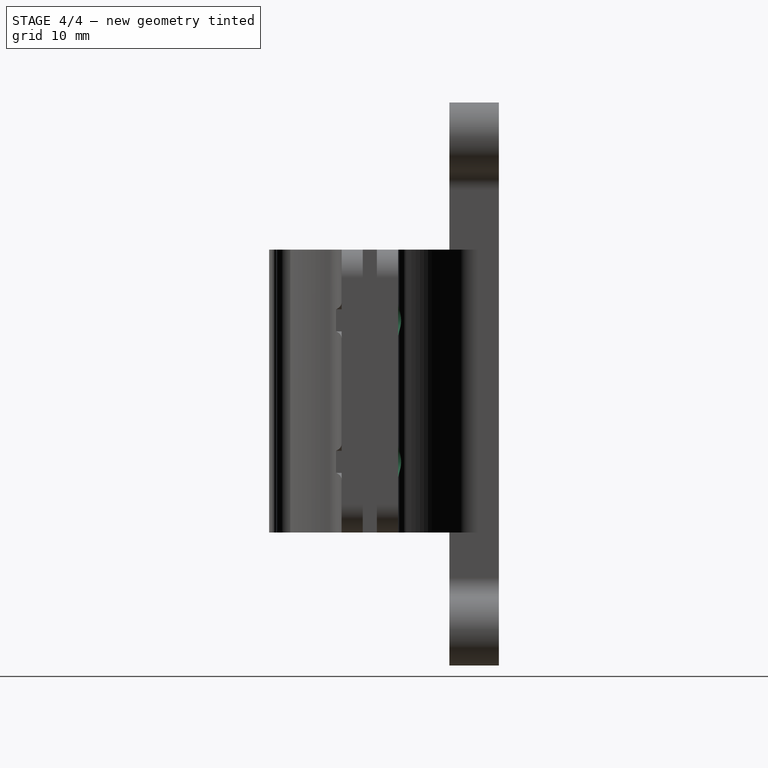
[diagram: stage 4 of 4 — right view after this stage's code; geometry added in this stage tinted green]
FEATURE [Sketcher::SketchObject] Sketch005
  ExternalGeometry = -> [Pocket]
  MapMode = 5
  Placement = pos=(0,4,-5) rot=(-1,0,0;1.5708rad)
  Support = -> [Pocket]
  sketch-geometry (2):
    g0: Circle CenterX=28 CenterY=30 CenterZ=0 NormalX=0 NormalY=0 NormalZ=1 AngleXU=0 Radius=2.8
    g1: Circle CenterX=28 CenterY=10 CenterZ=0 NormalX=0 NormalY=0 NormalZ=1 AngleXU=0 Radius=2.8
  constraints (4):
    c: Coincident(g0,g-3)
    c: Coincident(g1,g-4)
    c: Radius(g1) = 2.8
    c: Radius(g0) = 2.8
FEATURE [PartDesign::Pocket] Pocket001
  BaseFeature = -> Pocket
  Length = 1
  Length2 = 2
  Placement = pos=(0,0,-5) rot=(1,0,0;3.14159rad)
  Profile = -> Sketch005
  Reversed = true
  Type = 4
FEATURE [Sketcher::SketchObject] Sketch006
  ExternalGeometry = -> [Pocket001]
  MapMode = 5
  Placement = pos=(0,11.25,-5) rot=(0,0.707107,-0.707107;3.14159rad)
  Support = -> [Pocket001]
  sketch-geometry (30):
    g0: LineSegment [constr] StartX=-24.9287 StartY=53.8 StartZ=0 EndX=24.7053 EndY=53.8 EndZ=0
    g1: LineSegment [constr] StartX=30.1518 StartY=-15.8 StartZ=0 EndX=-30.2536 EndY=-15.8 EndZ=0
    g2: LineSegment StartX=20.4068 StartY=-15.8 StartZ=0 EndX=18.8418 EndY=-13.0893 EndZ=0
    g3: LineSegment StartX=18.8418 StartY=-13.0893 StartZ=0 EndX=15.7118 EndY=-13.0893 EndZ=0
    g4: LineSegment StartX=15.7118 StartY=-13.0893 StartZ=0 EndX=14.1468 EndY=-15.8 EndZ=0
    g5: LineSegment StartX=14.1468 StartY=-15.8 StartZ=0 EndX=15.7118 EndY=-18.5107 EndZ=0
    g6: LineSegment StartX=15.7118 StartY=-18.5107 StartZ=0 EndX=18.8418 EndY=-18.5107 EndZ=0
    g7: LineSegment StartX=18.8418 StartY=-18.5107 StartZ=0 EndX=20.4068 EndY=-15.8 EndZ=0
    g8: Circle [constr] CenterX=17.2768 CenterY=-15.8 CenterZ=0 NormalX=0 NormalY=0 NormalZ=1 AngleXU=0 Radius=3.13
    g9: LineSegment StartX=-14.1932 StartY=-15.8 StartZ=0 EndX=-15.7582 EndY=-13.0893 EndZ=0
    g10: LineSegment StartX=-15.7582 StartY=-13.0893 StartZ=0 EndX=-18.8882 EndY=-13.0893 EndZ=0
    g11: LineSegment StartX=-18.8882 StartY=-13.0893 StartZ=0 EndX=-20.4532 EndY=-15.8 EndZ=0
    g12: LineSegment StartX=-20.4532 StartY=-15.8 StartZ=0 EndX=-18.8882 EndY=-18.5107 EndZ=0
    g13: LineSegment StartX=-18.8882 StartY=-18.5107 StartZ=0 EndX=-15.7582 EndY=-18.5107 EndZ=0
    g14: LineSegment StartX=-15.7582 StartY=-18.5107 StartZ=0 EndX=-14.1932 EndY=-15.8 EndZ=0
    g15: Circle [constr] CenterX=-17.3232 CenterY=-15.8 CenterZ=0 NormalX=0 NormalY=0 NormalZ=1 AngleXU=0 Radius=3.13
    g16: LineSegment StartX=20.4068 StartY=53.8 StartZ=0 EndX=18.8418 EndY=56.5107 EndZ=0
    g17: LineSegment StartX=18.8418 StartY=56.5107 StartZ=0 EndX=15.7118 EndY=56.5107 EndZ=0
    g18: LineSegment StartX=15.7118 StartY=56.5107 StartZ=0 EndX=14.1468 EndY=53.8 EndZ=0
    g19: LineSegment StartX=14.1468 StartY=53.8 StartZ=0 EndX=15.7118 EndY=51.0893 EndZ=0
    g20: LineSegment StartX=15.7118 StartY=51.0893 StartZ=0 EndX=18.8418 EndY=51.0893 EndZ=0
    g21: LineSegment StartX=18.8418 StartY=51.0893 StartZ=0 EndX=20.4068 EndY=53.8 EndZ=0
    g22: Circle [constr] CenterX=17.2768 CenterY=53.8 CenterZ=0 NormalX=0 NormalY=0 NormalZ=1 AngleXU=0 Radius=3.13
    g23: LineSegment StartX=-14.1932 StartY=53.8 StartZ=0 EndX=-15.7582 EndY=56.5107 EndZ=0
    g24: LineSegment StartX=-15.7582 StartY=56.5107 StartZ=0 EndX=-18.8882 EndY=56.5107 EndZ=0
    g25: LineSegment StartX=-18.8882 StartY=56.5107 StartZ=0 EndX=-20.4532 EndY=53.8 EndZ=0
    g26: LineSegment StartX=-20.4532 StartY=53.8 StartZ=0 EndX=-18.8882 EndY=51.0893 EndZ=0
    g27: LineSegment StartX=-18.8882 StartY=51.0893 StartZ=0 EndX=-15.7582 EndY=51.0893 EndZ=0
    g28: LineSegment StartX=-15.7582 StartY=51.0893 StartZ=0 EndX=-14.1932 EndY=53.8 EndZ=0
    g29: Circle [constr] CenterX=-17.3232 CenterY=53.8 CenterZ=0 NormalX=0 NormalY=0 NormalZ=1 AngleXU=0 Radius=3.13
  constraints (68):
    c: Horizontal(g0)
    c: PointOnObject(g-5,g0)
    c: Horizontal(g1)
    c: PointOnObject(g-4,g1)
    c: Coincident(g2,g3)
    c: Coincident(g3,g4)
    c: Coincident(g4,g5)
    c: Coincident(g5,g6)
    c: Coincident(g6,g7)
    c: Coincident(g7,g2)
    c: Equal(g2, g3-g7) x5
    c: PointOnObject(g2,g8)
    c: PointOnObject(g3,g8)
    c: PointOnObject(g4,g8)
    c: PointOnObject(g5,g8)
    c: PointOnObject(g6,g8)
    c: PointOnObject(g7,g8)
    c: Coincident(g8,g-3)
    c: PointOnObject(g7,g1)
    c: Coincident(g9,g10)
    c: Coincident(g10,g11)
    c: Coincident(g11,g12)
    c: Coincident(g12,g13)
    c: Coincident(g13,g14)
    c: Coincident(g14,g9)
    c: Equal(g9, g10-g14) x5
    c: PointOnObject(g9,g15)
    c: PointOnObject(g10,g15)
    c: PointOnObject(g11,g15)
    c: PointOnObject(g12,g15)
    c: PointOnObject(g13,g15)
    c: PointOnObject(g14,g15)
    c: Coincident(g15,g-4)
    c: PointOnObject(g14,g1)
    c: Coincident(g16,g17)
    c: Coincident(g17,g18)
    c: Coincident(g18,g19)
    c: Coincident(g19,g20)
    c: Coincident(g20,g21)
    c: Coincident(g21,g16)
    c: Equal(g16, g17-g21) x5
    c: PointOnObject(g16,g22)
    c: PointOnObject(g17,g22)
    c: PointOnObject(g18,g22)
    c: PointOnObject(g19,g22)
    c: PointOnObject(g20,g22)
    c: PointOnObject(g21,g22)
    c: Coincident(g22,g-5)
    c: PointOnObject(g21,g0)
    c: Coincident(g23,g24)
    c: Coincident(g24,g25)
    c: Coincident(g25,g26)
    c: Coincident(g26,g27)
    c: Coincident(g27,g28)
    c: Coincident(g28,g23)
    c: Equal(g23, g24-g28) x5
    c: PointOnObject(g23,g29)
    c: PointOnObject(g24,g29)
    c: PointOnObject(g25,g29)
    c: PointOnObject(g26,g29)
    c: PointOnObject(g27,g29)
    c: PointOnObject(g28,g29)
    c: Coincident(g29,g-6)
    c: PointOnObject(g28,g0)
    c: Radius(g29) = 3.13
    c: Radius(g22) = 3.13
    c: Radius(g8) = 3.13
    c: Radius(g15) = 3.13
FEATURE [PartDesign::Pocket] Pocket002
  BaseFeature = -> Pocket001
  Length = 3
  Length2 = 100
  Placement = pos=(0,0,-5) rot=(1,0,0;3.14159rad)
  Profile = -> Sketch006
  Type = 0
FEATURE [PartDesign::Body] Body
  Group = -> [Sketch001,Pad,Sketch002,Pad001,Fillet,Fillet001,Fillet002,Sketch,Hole,Sketch003,Hole001,Sketch004,Pocket,Sketch005,Pocket001,Sketch006,Pocket002]
  Origin = -> Origin
  Tip = -> Pocket002
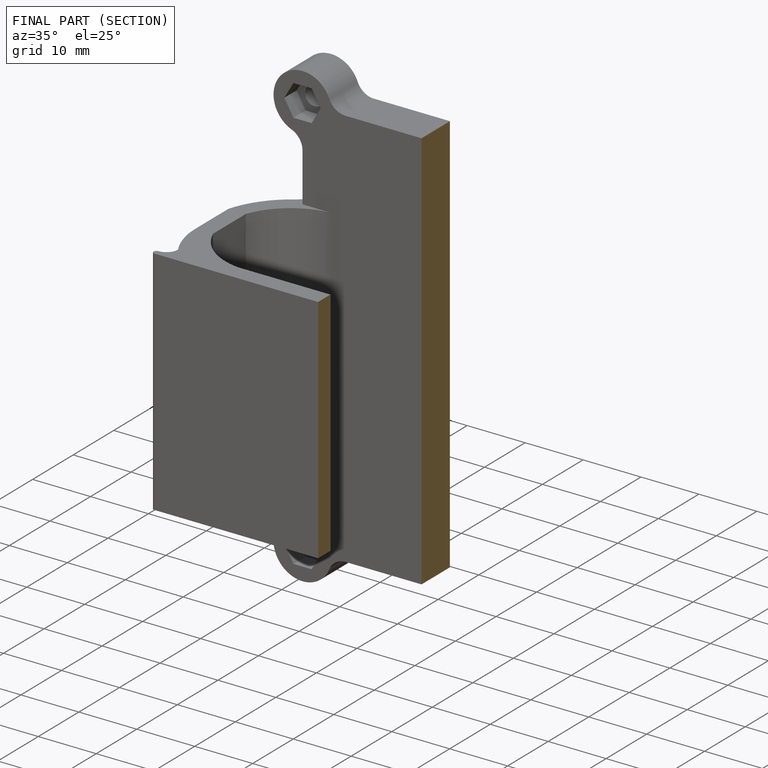
[diagram: finished part — half-section view (interior)]
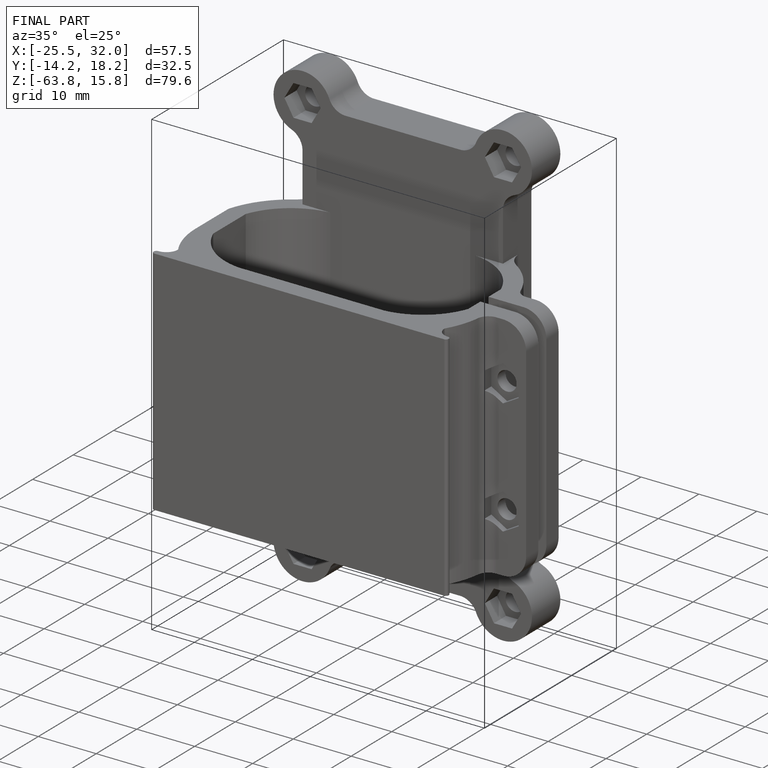
[diagram: finished part — iso view with bounding-box wireframe]
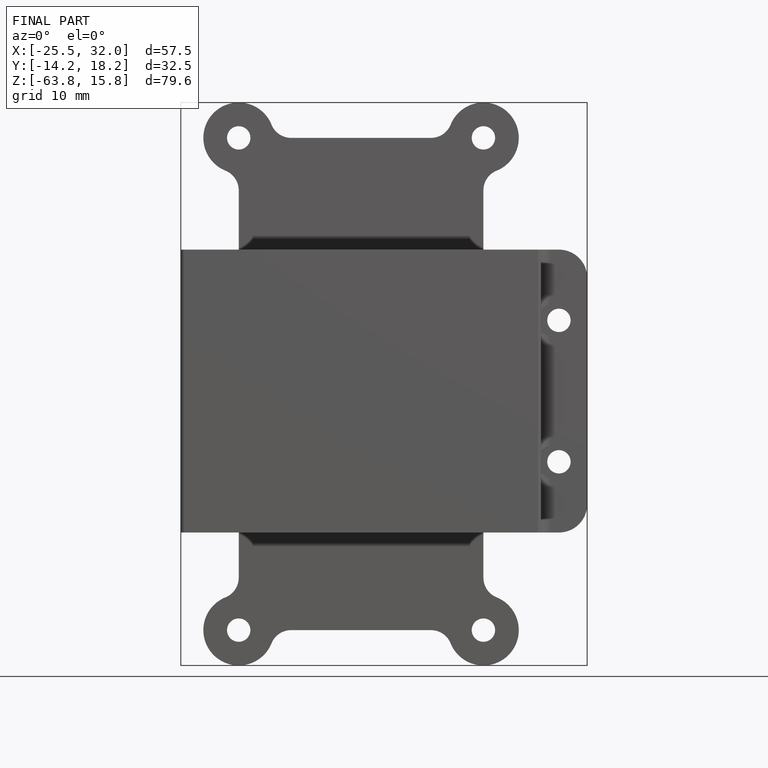
[diagram: finished part — front view with bounding-box wireframe]
